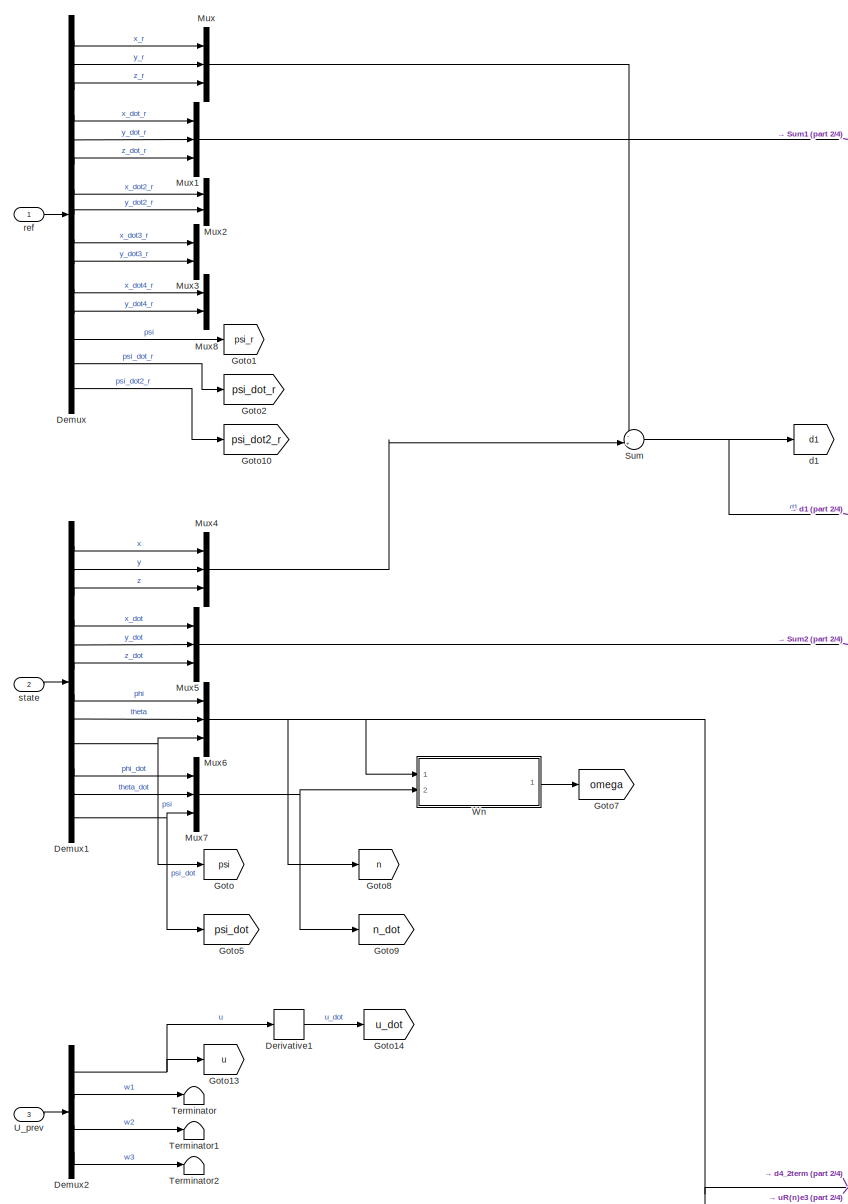
[diagram: root canvas - part 1/4, middle left region]
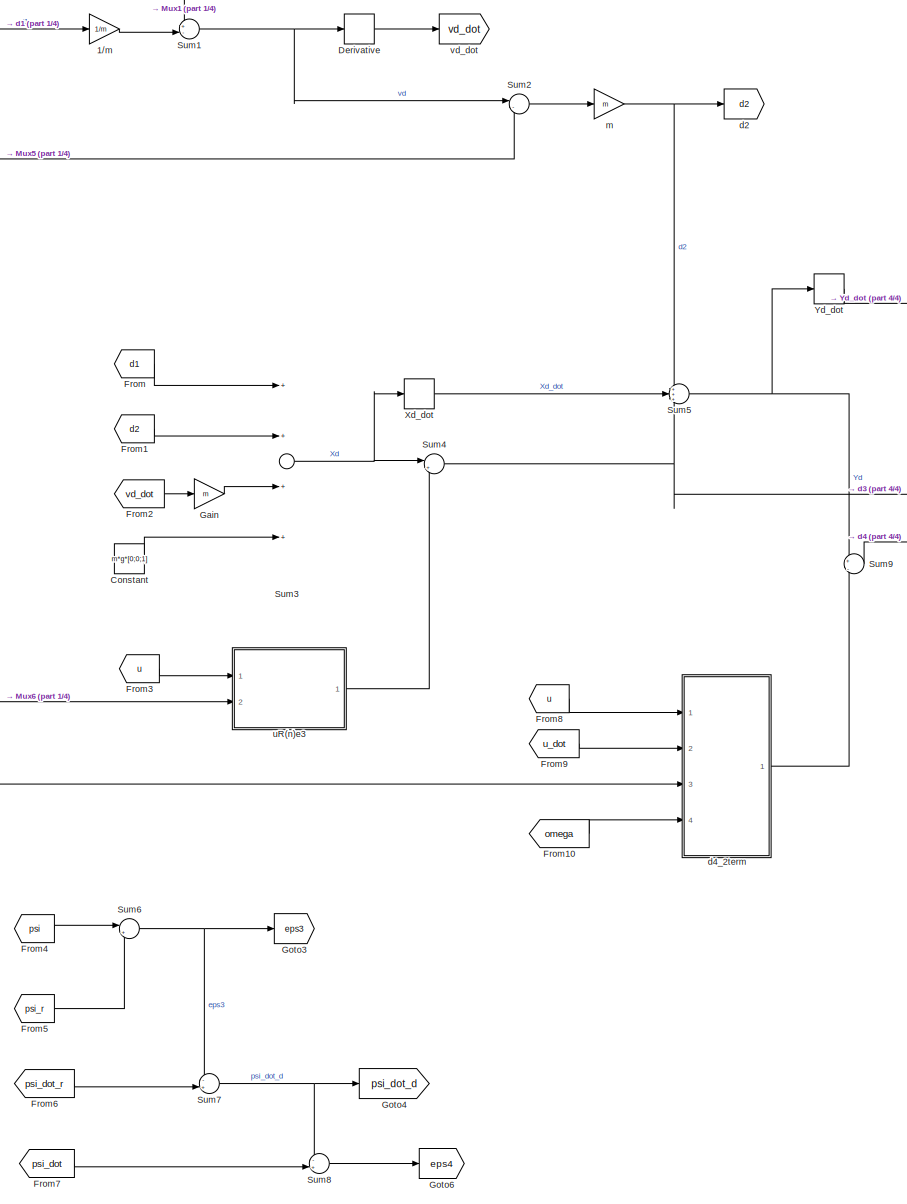
[diagram: root canvas - part 2/4, central region]
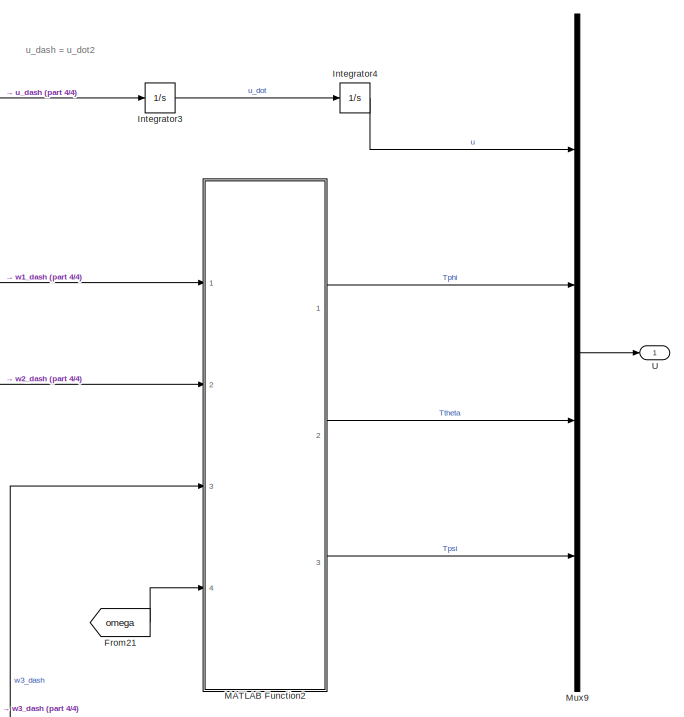
[diagram: root canvas - part 3/4, middle right region]
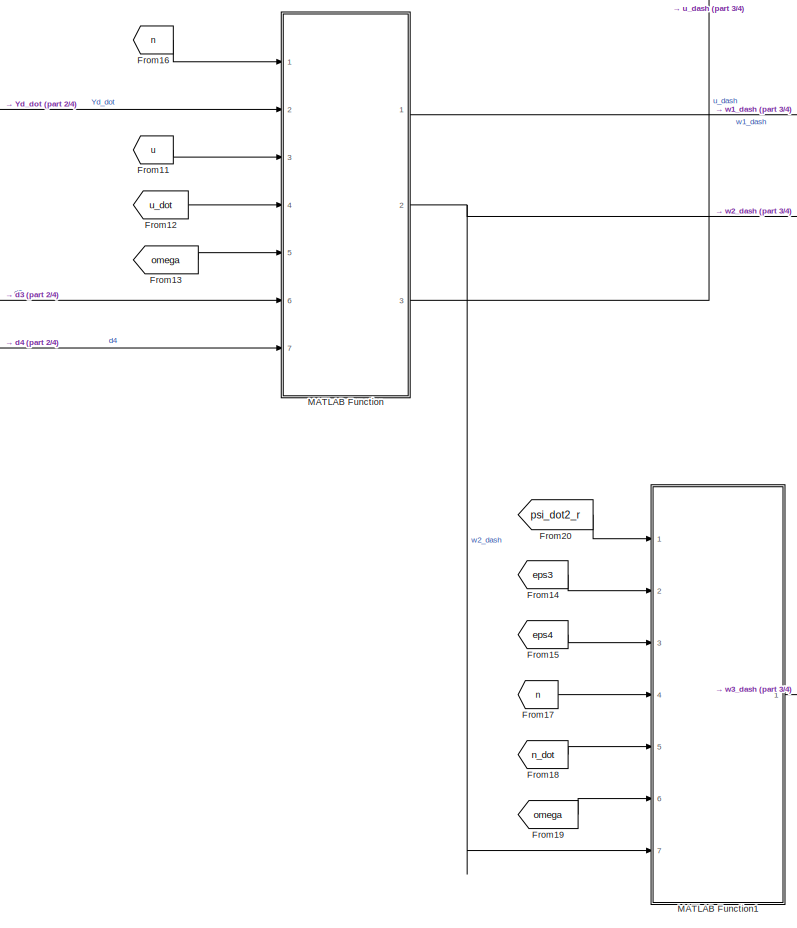
[diagram: root canvas - part 4/4, bottom center region]
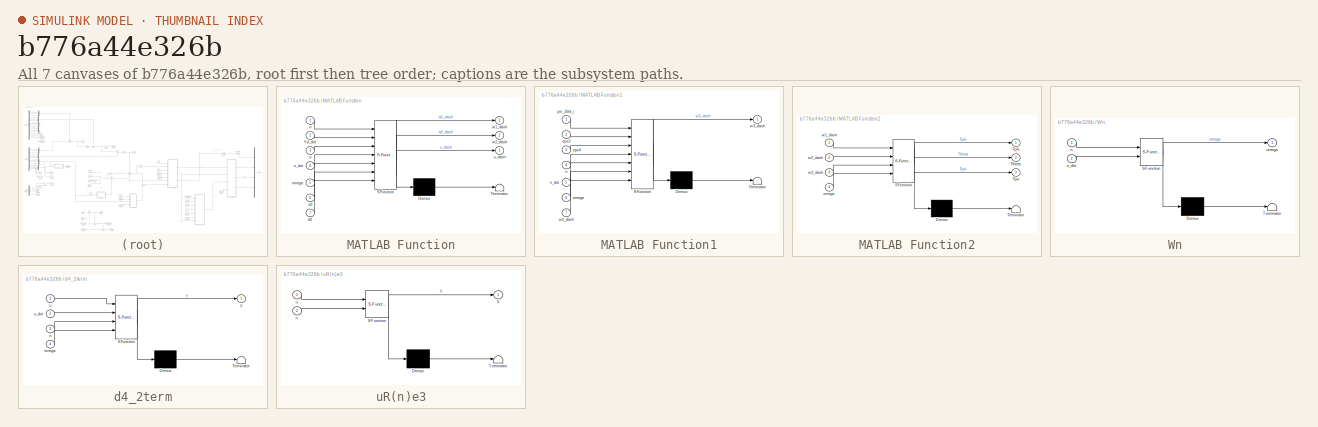
[diagram: thumbnail index - all 7 canvases of the model, root first then tree order]
MODEL slx_b776a44e326b
KIND model
CONFIG AbsTol = auto
CONFIG FixedStep = auto
CONFIG MaxStep = auto
CONFIG MinStep = auto
CONFIG RelTol = 1e-3
CONFIG SampleTimeConstraint = Unconstrained
CONFIG Solver = ode45
CONFIG SolverMode = Auto
CONFIG SolverName = ode45
CONFIG StartTime = 0.0
CONFIG StopTime = 10.0
BLOCK [Gain] 1//m
  Gain = 1/m
  OutDataTypeStr = Inherit: Inherit via internal rule
  ParamDataTypeStr = Inherit: Inherit via internal rule
  SaturateOnIntegerOverflow = off
BLOCK [Constant] Constant
  Value = m*g*[0;0;1]
BLOCK [Demux] Demux
  DisplayOption = bar
  Outputs = 15
  Ports = [1, 15]
BLOCK [Demux] Demux1
  DisplayOption = bar
  Outputs = 12
  Ports = [1, 12]
BLOCK [Demux] Demux2
  DisplayOption = bar
  Ports = [1, 4]
BLOCK [Derivative] Derivative
BLOCK [Derivative] Derivative1
BLOCK [From] From
  GotoTag = d1
BLOCK [From] From1
  GotoTag = d2
BLOCK [From] From10
  GotoTag = omega
BLOCK [From] From11
  GotoTag = u
BLOCK [From] From12
  GotoTag = u_dot
BLOCK [From] From13
  GotoTag = omega
BLOCK [From] From14
  GotoTag = eps3
BLOCK [From] From15
  GotoTag = eps4
BLOCK [From] From16
  GotoTag = n
BLOCK [From] From17
  GotoTag = n
BLOCK [From] From18
  GotoTag = n_dot
BLOCK [From] From19
  GotoTag = omega
BLOCK [From] From2
  GotoTag = vd_dot
BLOCK [From] From20
  GotoTag = psi_dot2_r
BLOCK [From] From21
  GotoTag = omega
BLOCK [From] From3
  GotoTag = u
BLOCK [From] From4
  GotoTag = psi
BLOCK [From] From5
  GotoTag = psi_r
BLOCK [From] From6
  GotoTag = psi_dot_r
BLOCK [From] From7
  GotoTag = psi_dot
BLOCK [From] From8
  GotoTag = u
BLOCK [From] From9
  GotoTag = u_dot
BLOCK [Gain] Gain
  Gain = m
  OutDataTypeStr = Inherit: Inherit via internal rule
  ParamDataTypeStr = Inherit: Inherit via internal rule
  SaturateOnIntegerOverflow = off
BLOCK [Goto] Goto
  GotoTag = psi
BLOCK [Goto] Goto1
  GotoTag = psi_r
BLOCK [Goto] Goto10
  GotoTag = psi_dot2_r
BLOCK [Goto] Goto13
  GotoTag = u
BLOCK [Goto] Goto14
  GotoTag = u_dot
BLOCK [Goto] Goto2
  GotoTag = psi_dot_r
BLOCK [Goto] Goto3
  GotoTag = eps3
BLOCK [Goto] Goto4
  GotoTag = psi_dot_d
BLOCK [Goto] Goto5
  GotoTag = psi_dot
BLOCK [Goto] Goto6
  GotoTag = eps4
BLOCK [Goto] Goto7
  GotoTag = omega
BLOCK [Goto] Goto8
  GotoTag = n
BLOCK [Goto] Goto9
  GotoTag = n_dot
BLOCK [Integrator] Integrator3
  Ports = [1, 1]
BLOCK [Integrator] Integrator4
  Ports = [1, 1]
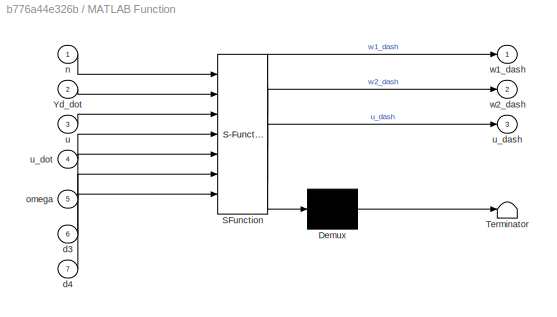
BLOCK [SubSystem] MATLAB Function
  ErrorFcn = Stateflow.Translate.translate
  PermitHierarchicalResolution = ExplicitOnly
  Ports = [7, 3]
  RequestExecContextInheritance = off
  SFBlockType = MATLAB Function
  TreatAsAtomicUnit = on
BLOCK [Demux] MATLAB Function/ Demux 
  Outputs = 1
  Ports = [1, 1]
BLOCK [S-Function] MATLAB Function/ SFunction 
  FunctionName = sf_sfun
  PortCounts = [7 4]
  Ports = [7, 4]
  Tag = Stateflow S-Function control1_v3 4
BLOCK [Terminator] MATLAB Function/ Terminator 
BLOCK [Inport] MATLAB Function/Yd_dot
  IconDisplay = Port number
  Port = 2
BLOCK [Inport] MATLAB Function/d3
  IconDisplay = Port number
  Port = 6
BLOCK [Inport] MATLAB Function/d4
  IconDisplay = Port number
  Port = 7
BLOCK [Inport] MATLAB Function/n
  IconDisplay = Port number
BLOCK [Inport] MATLAB Function/omega
  IconDisplay = Port number
  Port = 5
BLOCK [Inport] MATLAB Function/u
  IconDisplay = Port number
  Port = 3
BLOCK [Outport] MATLAB Function/u_dash
  IconDisplay = Port number
  Port = 3
BLOCK [Inport] MATLAB Function/u_dot
  IconDisplay = Port number
  Port = 4
BLOCK [Outport] MATLAB Function/w1_dash
  IconDisplay = Port number
BLOCK [Outport] MATLAB Function/w2_dash
  IconDisplay = Port number
  Port = 2
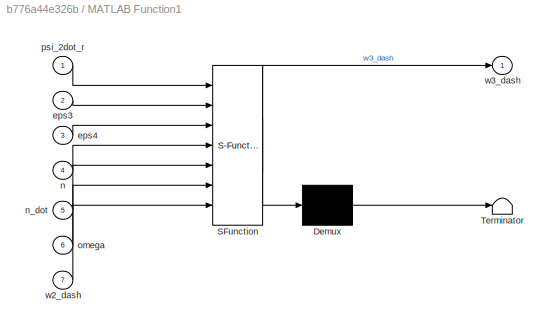
BLOCK [SubSystem] MATLAB Function1
  ErrorFcn = Stateflow.Translate.translate
  PermitHierarchicalResolution = ExplicitOnly
  Ports = [7, 1]
  RequestExecContextInheritance = off
  SFBlockType = MATLAB Function
  TreatAsAtomicUnit = on
BLOCK [Demux] MATLAB Function1/ Demux 
  Outputs = 1
  Ports = [1, 1]
BLOCK [S-Function] MATLAB Function1/ SFunction 
  FunctionName = sf_sfun
  PortCounts = [7 2]
  Ports = [7, 2]
  Tag = Stateflow S-Function control1_v3 5
BLOCK [Terminator] MATLAB Function1/ Terminator 
BLOCK [Inport] MATLAB Function1/eps3
  IconDisplay = Port number
  Port = 2
BLOCK [Inport] MATLAB Function1/eps4
  IconDisplay = Port number
  Port = 3
BLOCK [Inport] MATLAB Function1/n
  IconDisplay = Port number
  Port = 4
BLOCK [Inport] MATLAB Function1/n_dot
  IconDisplay = Port number
  Port = 5
BLOCK [Inport] MATLAB Function1/omega
  IconDisplay = Port number
  Port = 6
BLOCK [Inport] MATLAB Function1/psi_2dot_r
  IconDisplay = Port number
BLOCK [Inport] MATLAB Function1/w2_dash
  IconDisplay = Port number
  Port = 7
BLOCK [Outport] MATLAB Function1/w3_dash
  IconDisplay = Port number
BLOCK [SubSystem] MATLAB Function2
  ErrorFcn = Stateflow.Translate.translate
  PermitHierarchicalResolution = ExplicitOnly
  Ports = [4, 3]
  RequestExecContextInheritance = off
  SFBlockType = MATLAB Function
  TreatAsAtomicUnit = on
BLOCK [Demux] MATLAB Function2/ Demux 
  Outputs = 1
  Ports = [1, 1]
BLOCK [S-Function] MATLAB Function2/ SFunction 
  FunctionName = sf_sfun
  PortCounts = [4 4]
  Ports = [4, 4]
  Tag = Stateflow S-Function control1_v3 6
BLOCK [Terminator] MATLAB Function2/ Terminator 
BLOCK [Outport] MATLAB Function2/Tphi
  IconDisplay = Port number
BLOCK [Outport] MATLAB Function2/Tpsi
  IconDisplay = Port number
  Port = 3
BLOCK [Outport] MATLAB Function2/Ttheta
  IconDisplay = Port number
  Port = 2
BLOCK [Inport] MATLAB Function2/omega
  IconDisplay = Port number
  Port = 4
BLOCK [Inport] MATLAB Function2/w1_dash
  IconDisplay = Port number
BLOCK [Inport] MATLAB Function2/w2_dash
  IconDisplay = Port number
  Port = 2
BLOCK [Inport] MATLAB Function2/w3_dash
  IconDisplay = Port number
  Port = 3
BLOCK [Mux] Mux
  DisplayOption = bar
  Inputs = 3
  Ports = [3, 1]
BLOCK [Mux] Mux1
  DisplayOption = bar
  Inputs = 3
  Ports = [3, 1]
BLOCK [Mux] Mux2
  DisplayOption = bar
  Inputs = 2
  Ports = [2, 1]
BLOCK [Mux] Mux3
  DisplayOption = bar
  Inputs = 2
  Ports = [2, 1]
BLOCK [Mux] Mux4
  DisplayOption = bar
  Inputs = 3
  Ports = [3, 1]
BLOCK [Mux] Mux5
  DisplayOption = bar
  Inputs = 3
  Ports = [3, 1]
BLOCK [Mux] Mux6
  DisplayOption = bar
  Inputs = 3
  Ports = [3, 1]
BLOCK [Mux] Mux7
  DisplayOption = bar
  Inputs = 3
  Ports = [3, 1]
BLOCK [Mux] Mux8
  DisplayOption = bar
  Inputs = 2
  Ports = [2, 1]
BLOCK [Mux] Mux9
  DisplayOption = bar
  Ports = [4, 1]
BLOCK [Sum] Sum
  IconShape = round
  InputSameDT = off
  Inputs = -+|
  OutDataTypeStr = Inherit: Inherit via internal rule
  Ports = [2, 1]
  SaturateOnIntegerOverflow = off
BLOCK [Sum] Sum1
  IconShape = round
  InputSameDT = off
  Inputs = +-|
  OutDataTypeStr = Inherit: Inherit via internal rule
  Ports = [2, 1]
  SaturateOnIntegerOverflow = off
BLOCK [Sum] Sum2
  IconShape = round
  InputSameDT = off
  Inputs = |-+
  OutDataTypeStr = Inherit: Inherit via internal rule
  Ports = [2, 1]
  SaturateOnIntegerOverflow = off
BLOCK [Sum] Sum3
  InputSameDT = off
  Inputs = ++++
  OutDataTypeStr = Inherit: Inherit via internal rule
  Ports = [4, 1]
  SaturateOnIntegerOverflow = off
BLOCK [Sum] Sum4
  IconShape = round
  InputSameDT = off
  Inputs = |+-
  OutDataTypeStr = Inherit: Inherit via internal rule
  Ports = [2, 1]
  SaturateOnIntegerOverflow = off
BLOCK [Sum] Sum5
  IconShape = round
  InputSameDT = off
  Inputs = +++
  OutDataTypeStr = Inherit: Inherit via internal rule
  Ports = [3, 1]
  SaturateOnIntegerOverflow = off
BLOCK [Sum] Sum6
  IconShape = round
  InputSameDT = off
  Inputs = |+-
  OutDataTypeStr = Inherit: Inherit via internal rule
  Ports = [2, 1]
  SaturateOnIntegerOverflow = off
BLOCK [Sum] Sum7
  IconShape = round
  InputSameDT = off
  Inputs = -+|
  OutDataTypeStr = Inherit: Inherit via internal rule
  Ports = [2, 1]
  SaturateOnIntegerOverflow = off
BLOCK [Sum] Sum8
  IconShape = round
  InputSameDT = off
  Inputs = -+|
  OutDataTypeStr = Inherit: Inherit via internal rule
  Ports = [2, 1]
  SaturateOnIntegerOverflow = off
BLOCK [Sum] Sum9
  IconShape = round
  InputSameDT = off
  Inputs = +|-
  OutDataTypeStr = Inherit: Inherit via internal rule
  Ports = [2, 1]
  SaturateOnIntegerOverflow = off
BLOCK [Terminator] Terminator
BLOCK [Terminator] Terminator1
BLOCK [Terminator] Terminator2
BLOCK [Outport] U
  IconDisplay = Port number
BLOCK [Inport] U_prev
  IconDisplay = Port number
  Port = 3
BLOCK [SubSystem] Wn
  ErrorFcn = Stateflow.Translate.translate
  PermitHierarchicalResolution = ExplicitOnly
  Ports = [2, 1]
  RequestExecContextInheritance = off
  SFBlockType = MATLAB Function
  TreatAsAtomicUnit = on
BLOCK [Demux] Wn/ Demux 
  Outputs = 1
  Ports = [1, 1]
BLOCK [S-Function] Wn/ SFunction 
  FunctionName = sf_sfun
  PortCounts = [2 2]
  Ports = [2, 2]
  Tag = Stateflow S-Function control1_v3 1
BLOCK [Terminator] Wn/ Terminator 
BLOCK [Inport] Wn/n
  IconDisplay = Port number
BLOCK [Inport] Wn/n_dot
  IconDisplay = Port number
  Port = 2
BLOCK [Outport] Wn/omega
  IconDisplay = Port number
BLOCK [Derivative] Xd_dot
BLOCK [Derivative] Yd_dot
BLOCK [Goto] d1
  GotoTag = d1
BLOCK [Goto] d2
  GotoTag = d2
BLOCK [SubSystem] d4_2term
  ErrorFcn = Stateflow.Translate.translate
  PermitHierarchicalResolution = ExplicitOnly
  Ports = [4, 1]
  RequestExecContextInheritance = off
  SFBlockType = MATLAB Function
  TreatAsAtomicUnit = on
BLOCK [Demux] d4_2term/ Demux 
  Outputs = 1
  Ports = [1, 1]
BLOCK [S-Function] d4_2term/ SFunction 
  FunctionName = sf_sfun
  PortCounts = [4 2]
  Ports = [4, 2]
  Tag = Stateflow S-Function control1_v3 3
BLOCK [Terminator] d4_2term/ Terminator 
BLOCK [Inport] d4_2term/n
  IconDisplay = Port number
  Port = 3
BLOCK [Inport] d4_2term/omega
  IconDisplay = Port number
  Port = 4
BLOCK [Inport] d4_2term/u
  IconDisplay = Port number
BLOCK [Inport] d4_2term/u_dot
  IconDisplay = Port number
  Port = 2
BLOCK [Outport] d4_2term/y
  IconDisplay = Port number
BLOCK [Gain] m
  Gain = m
  OutDataTypeStr = Inherit: Inherit via internal rule
  ParamDataTypeStr = Inherit: Inherit via internal rule
  SaturateOnIntegerOverflow = off
BLOCK [Inport] ref
  IconDisplay = Port number
BLOCK [Inport] state
  IconDisplay = Port number
  Port = 2
BLOCK [SubSystem] uR(n)e3
  ErrorFcn = Stateflow.Translate.translate
  PermitHierarchicalResolution = ExplicitOnly
  Ports = [2, 1]
  RequestExecContextInheritance = off
  SFBlockType = MATLAB Function
  TreatAsAtomicUnit = on
BLOCK [Demux] uR(n)e3/ Demux 
  Outputs = 1
  Ports = [1, 1]
BLOCK [S-Function] uR(n)e3/ SFunction 
  FunctionName = sf_sfun
  PortCounts = [2 2]
  Ports = [2, 2]
  Tag = Stateflow S-Function control1_v3 2
BLOCK [Terminator] uR(n)e3/ Terminator 
BLOCK [Outport] uR(n)e3/X
  IconDisplay = Port number
BLOCK [Inport] uR(n)e3/n
  IconDisplay = Port number
  Port = 2
BLOCK [Inport] uR(n)e3/u
  IconDisplay = Port number
BLOCK [Goto] vd_dot
  GotoTag = vd_dot
ANNOTATION (root): u_dash = u_dot2
LINE 1//m:1 -> Sum1:2
LINE Constant:1 -> Sum3:4
LINE Demux1:1 -> Mux4:1
LINE Demux1:10 -> Mux7:1
LINE Demux1:11 -> Mux7:2
NET Demux1:12 -> Goto5:1, Mux7:3
LINE Demux1:2 -> Mux4:2
LINE Demux1:3 -> Mux4:3
LINE Demux1:4 -> Mux5:1
LINE Demux1:5 -> Mux5:2
LINE Demux1:6 -> Mux5:3
LINE Demux1:7 -> Mux6:1
LINE Demux1:8 -> Mux6:2
NET Demux1:9 -> Goto:1, Mux6:3
NET Demux2:1 -> Derivative1:1, Goto13:1
LINE Demux2:2 -> Terminator:1
LINE Demux2:3 -> Terminator1:1
LINE Demux2:4 -> Terminator2:1
LINE Demux:1 -> Mux:1
LINE Demux:10 -> Mux3:2
LINE Demux:11 -> Mux8:1
LINE Demux:12 -> Mux8:2
LINE Demux:13 -> Goto1:1
LINE Demux:14 -> Goto2:1
LINE Demux:15 -> Goto10:1
LINE Demux:2 -> Mux:2
LINE Demux:3 -> Mux:3
LINE Demux:4 -> Mux1:1
LINE Demux:5 -> Mux1:2
LINE Demux:6 -> Mux1:3
LINE Demux:7 -> Mux2:1
LINE Demux:8 -> Mux2:2
LINE Demux:9 -> Mux3:1
LINE Derivative1:1 -> Goto14:1
LINE Derivative:1 -> vd_dot:1
LINE From10:1 -> d4_2term:4
LINE From11:1 -> MATLAB Function:3
LINE From12:1 -> MATLAB Function:4
LINE From13:1 -> MATLAB Function:5
LINE From14:1 -> MATLAB Function1:2
LINE From15:1 -> MATLAB Function1:3
LINE From16:1 -> MATLAB Function:1
LINE From17:1 -> MATLAB Function1:4
LINE From18:1 -> MATLAB Function1:5
LINE From19:1 -> MATLAB Function1:6
LINE From1:1 -> Sum3:2
LINE From20:1 -> MATLAB Function1:1
LINE From21:1 -> MATLAB Function2:4
LINE From2:1 -> Gain:1
LINE From3:1 -> uR(n)e3:1
LINE From4:1 -> Sum6:1
LINE From5:1 -> Sum6:2
LINE From6:1 -> Sum7:2
LINE From7:1 -> Sum8:2
LINE From8:1 -> d4_2term:1
LINE From9:1 -> d4_2term:2
LINE From:1 -> Sum3:1
LINE Gain:1 -> Sum3:3
LINE Integrator3:1 -> Integrator4:1
LINE Integrator4:1 -> Mux9:1
LINE MATLAB Function1:1 -> MATLAB Function2:3
LINE MATLAB Function2:1 -> Mux9:2
LINE MATLAB Function2:2 -> Mux9:3
LINE MATLAB Function2:3 -> Mux9:4
LINE MATLAB Function:1 -> MATLAB Function2:1
NET MATLAB Function:2 -> MATLAB Function1:7, MATLAB Function2:2
LINE MATLAB Function:3 -> Integrator3:1
LINE Mux1:1 -> Sum1:1
LINE Mux4:1 -> Sum:2
LINE Mux5:1 -> Sum2:2
NET Mux6:1 -> Goto8:1, Wn:1, d4_2term:3, uR(n)e3:2
NET Mux7:1 -> Goto9:1, Wn:2
LINE Mux9:1 -> U:1
LINE Mux:1 -> Sum:1
NET Sum1:1 -> Derivative:1, Sum2:1
LINE Sum2:1 -> m:1
NET Sum3:1 -> Sum4:1, Xd_dot:1
NET Sum4:1 -> MATLAB Function:6, Sum5:3
NET Sum5:1 -> Sum9:1, Yd_dot:1
NET Sum6:1 -> Goto3:1, Sum7:1
NET Sum7:1 -> Goto4:1, Sum8:1
LINE Sum8:1 -> Goto6:1
LINE Sum9:1 -> MATLAB Function:7
NET Sum:1 -> 1//m:1, d1:1
LINE U_prev:1 -> Demux2:1
LINE Wn:1 -> Goto7:1
LINE Xd_dot:1 -> Sum5:2
LINE Yd_dot:1 -> MATLAB Function:2
LINE d4_2term:1 -> Sum9:2
NET m:1 -> Sum5:1, d2:1
LINE ref:1 -> Demux:1
LINE state:1 -> Demux1:1
LINE uR(n)e3:1 -> Sum4:2
note: NET lines group one-source signal fan-out (src -> all destinations, sorted); 1:1 wires keep LINE
CHART Wn states=1 transitions=1
  STATE_LABEL 'eML_blk_kernel()'
  STATE_LABEL 'SCRIPT:\nfunction omega = Wn(n, n_dot)\n% computes the angular velocities reative to the fixed frame\n\n%inputs\nphi = n(1);         theta = n(2);           psi = n(3);\n\n% matrix Wn\n    Wn = [ -sin(theta)           0         1\n           cos(theta)*sin(psi)   cos(psi)  0\n           cos(theta)*cos(psi)  -sin(psi)  0 ];\n       \nomega = Wn * n_dot;'
CHART uR(n)e3 states=1 transitions=1
  STATE_LABEL 'eML_blk_kernel()'
  STATE_LABEL 'SCRIPT:\nfunction X = uRne3(u, n)\n% Computes the lift force oriented along the axis Ea3 in the body fixed\n%  frame {B}, principal force responsible to sustaining the quadcopter\n%  flight.\n%   X == Ea3 == u*R(n)*e3.\n\n%Rotational matrix\n    % angular/orientation states\n    phi = n(1);  theta = n(2);   psi = n(3);\n    % a = R(n)*e3\n    a = [cos(phi)*sin(theta)*cos(psi)+sin(phi)*sin(psi)\n         cos(p...<+613ch>'
CHART d4_2term states=1 transitions=1
  STATE_LABEL 'eML_blk_kernel()'
  STATE_LABEL 'SCRIPT:\nfunction y = d4_2term(u, u_dot, n, omega)\n% Compute secind term for d4\n\n% angular/orientation states\n    phi = n(1);  theta = n(2);   psi = n(3);\n\n    R_n = [ cos(theta)*cos(psi)  sin(phi)*sin(theta)*cos(psi)-cos(phi)*sin(psi)  cos(phi)*sin(theta)*cos(psi)+sin(phi)*sin(psi)\n            cos(theta)*sin(psi)  sin(phi)*sin(theta)*sin(psi)+cos(phi)*cos(psi)  cos(phi)*sin(theta)*sin(psi)-sin(phi...<+349ch>'
CHART MATLAB Function states=1 transitions=1
  STATE_LABEL 'eML_blk_kernel()'
  STATE_LABEL 'SCRIPT:\nfunction [w1_dash, w2_dash, u_dash] = fcn(n, Yd_dot, u, u_dot, omega, d3, d4)\n% Computes equation (30) to obtain w1_dash, w2_dash, u_dash\n\n% Right hand side of eq(30)\n    % matrix R(n)\n    phi = n(1); theta = n(2);   psi = n(3);\n    \n    R_n = [ cos(theta)*cos(psi)  sin(phi)*sin(theta)*cos(psi)-cos(phi)*sin(psi)  cos(phi)*sin(theta)*cos(psi)+sin(phi)*sin(psi)\n            cos(theta)*sin(psi...<+589ch>'
CHART MATLAB Function1 states=1 transitions=1
  STATE_LABEL 'eML_blk_kernel()'
  STATE_LABEL 'SCRIPT:\nfunction w3_dash = fcn(psi_2dot_r, eps3, eps4, n, n_dot, omega,w2_dash)\n% Compute of equation (31) to obtain w3_dash\n\n    e1 = [1;0;0];\n    \n    % orientation/angular states\n    phi = n(1);          theta = n(2);          psi = n(3);\n    phi_dot = n_dot(1);  theta_dot = n_dot(2);  psi_dot = n_dot(3);  \n    % Wn_inv\n    Wn_inv = [ 0           sin(phi)             cos(phi)\n               0  ...<+738ch>'
CHART MATLAB Function2 states=1 transitions=1
  STATE_LABEL 'eML_blk_kernel()'
  STATE_LABEL "SCRIPT:\nfunction [Tphi, Ttheta, Tpsi] = fcn(w1_dash, w2_dash, w3_dash, omega)\n% Computes equation (26) to obtain the Torques in Euler's angles\n\n% parameters\n    global param\n    Ix = param.Ix;  Iy = param.Iy;  Iz = param.Iz;\n    QM = param.QM;  QT = param.QT;\n    \n    % P inertial matrix\n    P = diag([Ix Iy Iz]);\n    \nw_dash = [ w1_dash; w2_dash; w3_dash ];\n\n\n    % inv( eye(n) ) == eye(n)\n    I = ...<+203ch>"
